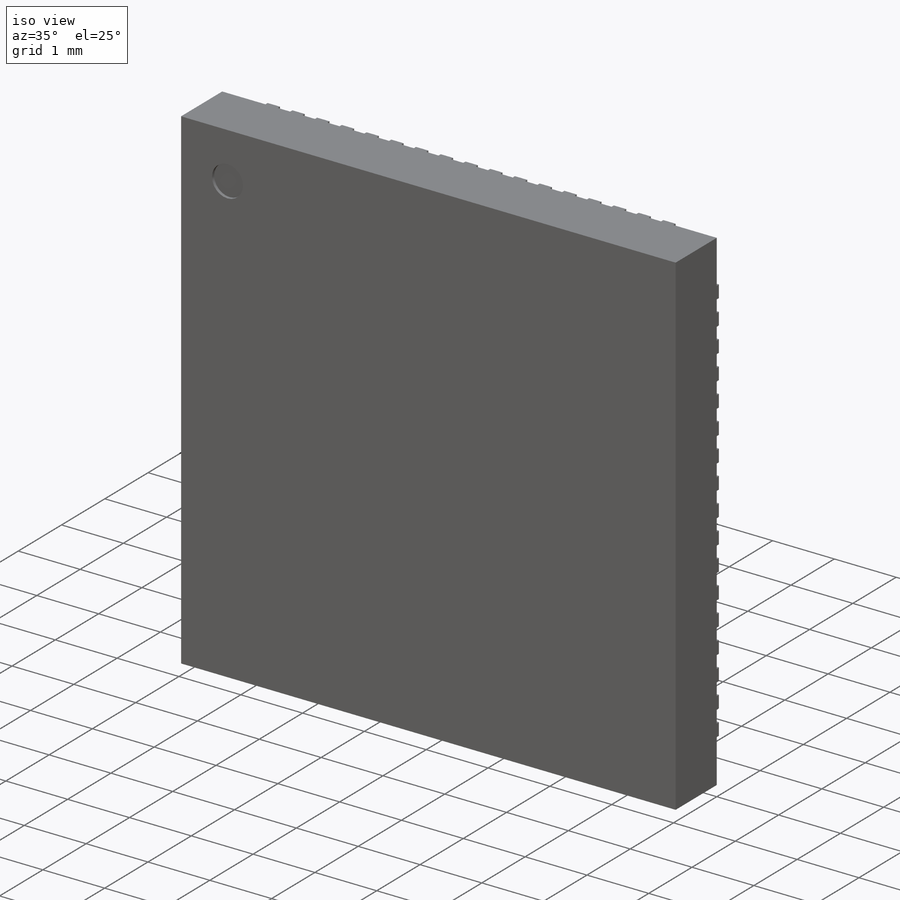
[diagram: iso view]
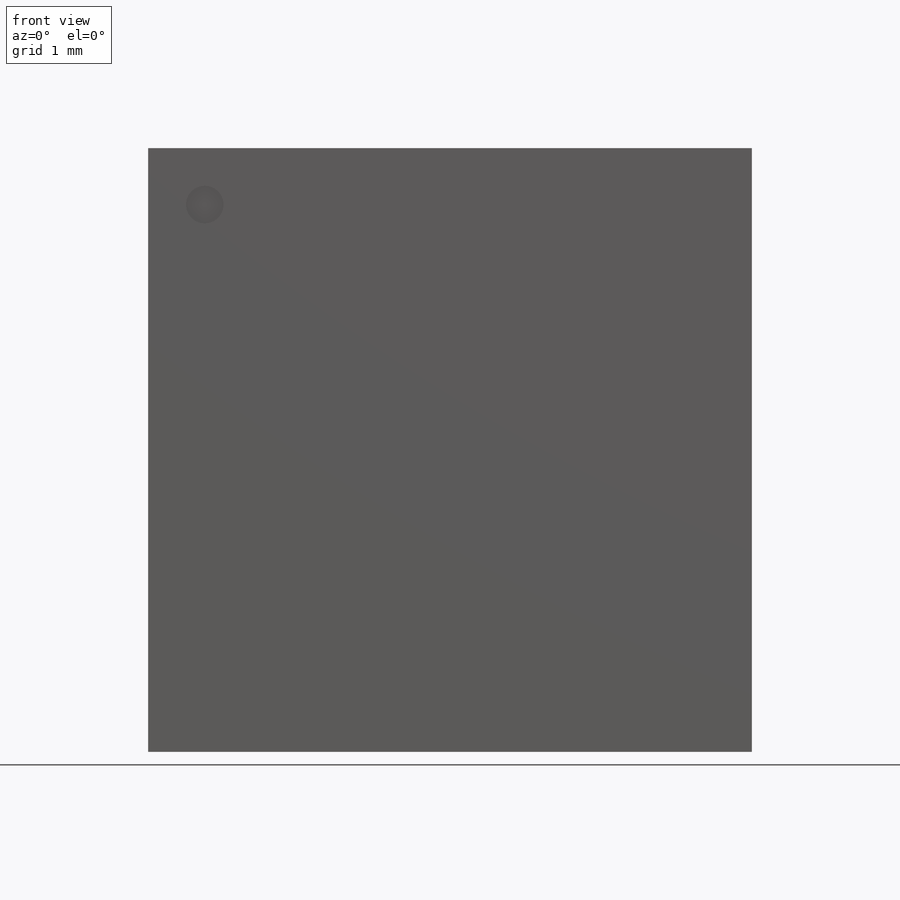
[diagram: front view]
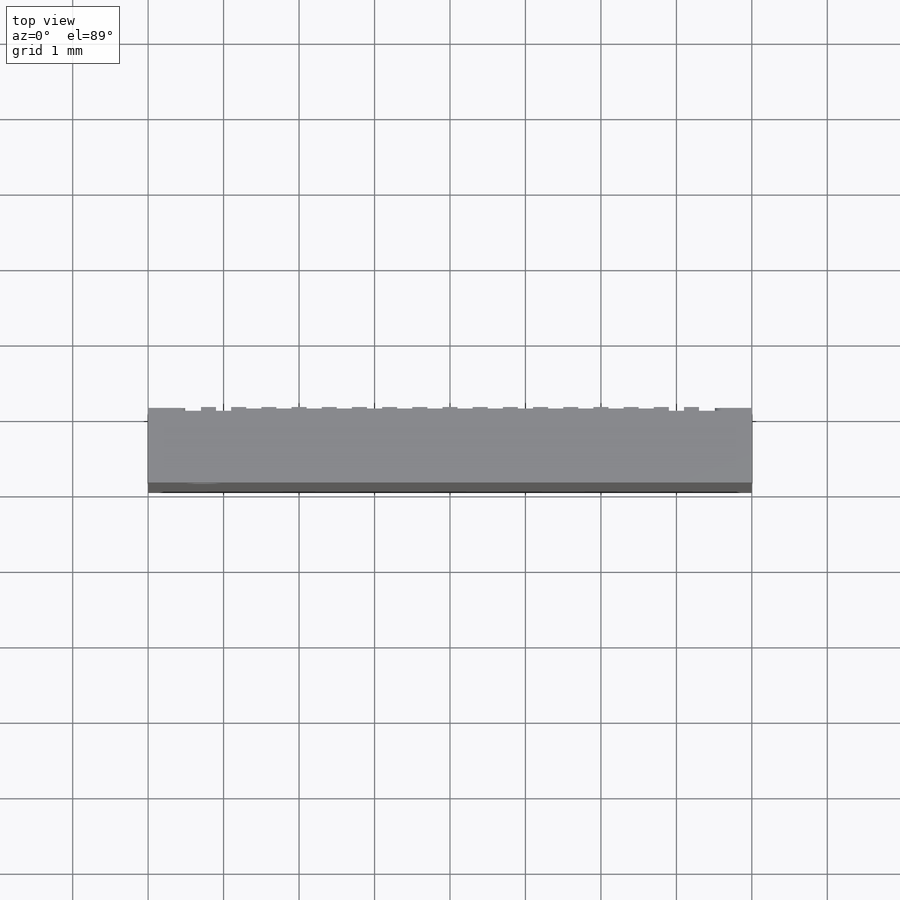
[diagram: top view]
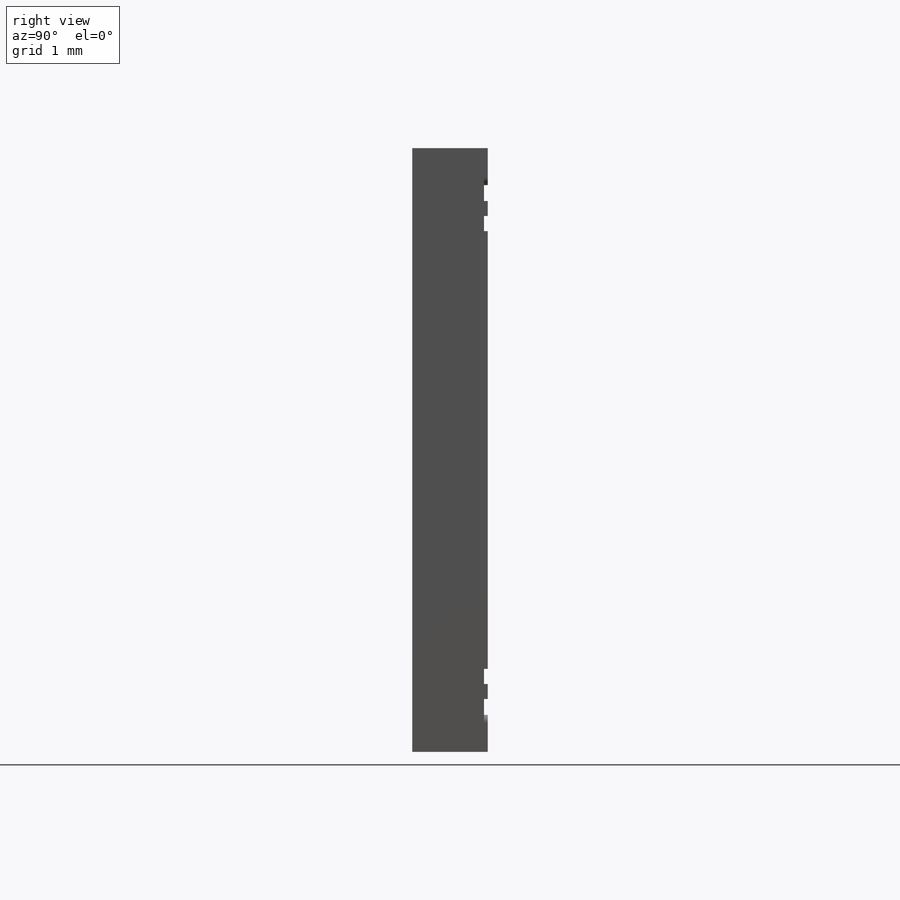
[diagram: right view]
SOLIDWORKS PART (.sldprt)
format: sldprt  version: not decoded by parser v0  size: 635,904 bytes
history: native  units: mm
features: sketch x3, extrude x2, material x1, cut_extrude x1 (+13 scaffold rows collapsed)
feature tree (20):
  scaffold x13  (default folders/planes/origin — collapsed)
  material  "Material <not specified>"
  sketch  "Sketch1"  dims[D1=8.0mm D2=8.0mm]
  extrude  "Boss-Extrude1"  Depth=0.95mm
  sketch  "Sketch2"  dims[c1.D7=0.3mm c1.D1=0.2mm c1.D2=0.39mm c1.D6=5.7mm c2.D7=5.7mm c2.D8=2.0mm c2.D4=9.0 c2.D3=9.0]
  extrude  "Boss-Extrude2"  Depth=0.05mm
  sketch  "Sketch3"  dims[D1=0.5mm D2=0.75mm D3=0.75mm]
  cut_extrude  "Cut-Extrude1"  Depth=0.05mm
decode coverage: 6 of 6 modeling features carry decoded parameters
note: suppression state not decoded; provenance and decode notes live in map.json
